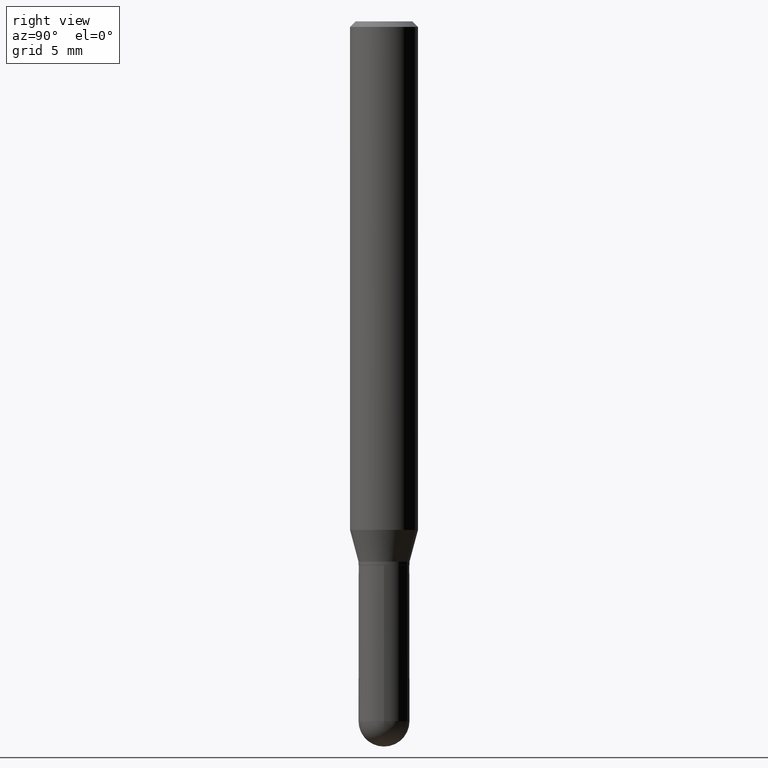
[diagram: clean part render]
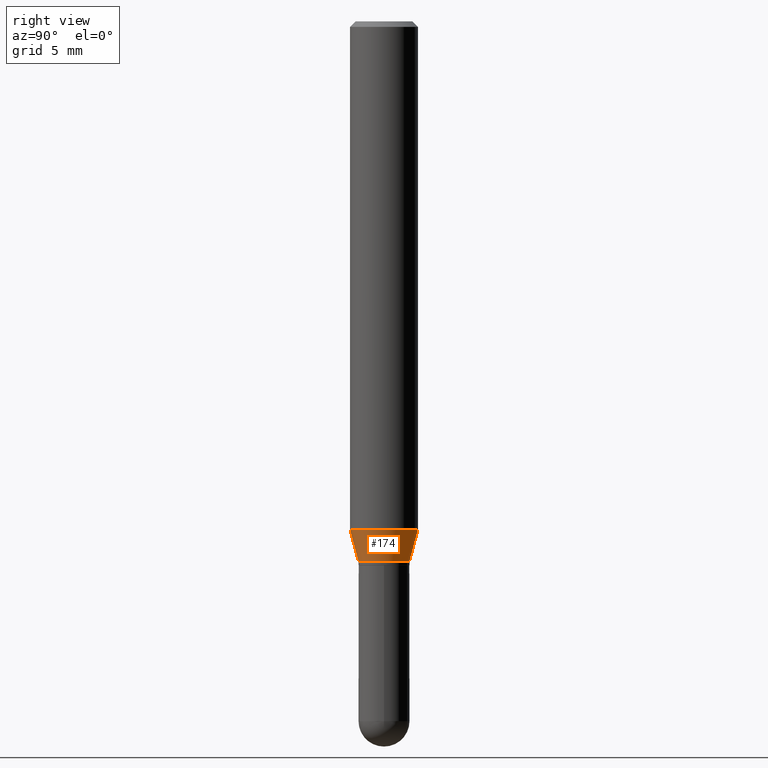
[diagram: same view with one face highlighted and labeled with its STEP entity id]
A machine part, right view. The second image highlights one B-rep face of the part: STEP entity #174.
In plain terms, the highlighted conical surface has half-angle 15 deg.
Its self-contained STEP definition (entity closure, byte-faithful):
#17 = VERTEX_POINT ( 'NONE', #65 ) ;
#55 = CONICAL_SURFACE ( 'NONE', #169, 0.07029999999999970994, 0.2617993877991510732 ) ;
#60 = CARTESIAN_POINT ( 'NONE',  ( -6.546527510330530901E-16, -0.09375000000000488498, -1.402483408562508638 ) ) ;
#65 = CARTESIAN_POINT ( 'NONE',  ( 5.828226790072563992E-16, 0.07029999999999450577, -1.489999999999999991 ) ) ;
#81 = DIRECTION ( 'NONE',  ( -2.445268528450320675E-29, 3.491768147958502797E-15, 1.000000000000000000 ) ) ;
#83 = VERTEX_POINT ( 'NONE', #374 ) ;
#137 = VECTOR ( 'NONE', #386, 39.37007874015748143 ) ;
#156 = DIRECTION ( 'NONE',  ( -6.982962677686265922E-15, -1.000000000000000000, 3.885985766236521163E-15 ) ) ;
#165 = VERTEX_POINT ( 'NONE', #327 ) ;
#169 = AXIS2_PLACEMENT_3D ( 'NONE', #332, #511, #431 ) ;
#174 = ADVANCED_FACE ( 'NONE', ( #357 ), #55, .T. ) ;
#182 = EDGE_CURVE ( 'NONE', #229, #165, #359, .T. ) ;
#204 = ORIENTED_EDGE ( 'NONE', *, *, #462, .F. ) ;
#229 = VERTEX_POINT ( 'NONE', #60 ) ;
#235 = CIRCLE ( 'NONE', #268, 0.07029999999999970994 ) ;
#265 = LINE ( 'NONE', #506, #312 ) ;
#266 = EDGE_LOOP ( 'NONE', ( #300, #308, #397, #204 ) ) ;
#268 = AXIS2_PLACEMENT_3D ( 'NONE', #354, #433, #156 ) ;
#274 = CARTESIAN_POINT ( 'NONE',  ( 4.995115432393847559E-16, 0.07029999999999450577, -1.489999999999999991 ) ) ;
#285 = DIRECTION ( 'NONE',  ( -6.982962677686265922E-15, -1.000000000000000000, 2.913971193241880372E-15 ) ) ;
#297 = AXIS2_PLACEMENT_3D ( 'NONE', #325, #81, #285 ) ;
#300 = ORIENTED_EDGE ( 'NONE', *, *, #508, .T. ) ;
#308 = ORIENTED_EDGE ( 'NONE', *, *, #470, .T. ) ;
#312 = VECTOR ( 'NONE', #321, 39.37007874015748854 ) ;
#321 = DIRECTION ( 'NONE',  ( -1.807323732225335661E-15, -0.2588190451025189631, 0.9659258262890687563 ) ) ;
#325 = CARTESIAN_POINT ( 'NONE',  ( 3.429448540631636149E-29, -4.897146894058840106E-15, -1.402483408562508860 ) ) ;
#327 = CARTESIAN_POINT ( 'NONE',  ( 6.661338147751283383E-16, 0.09374999999999512890, -1.402483408562509304 ) ) ;
#332 = CARTESIAN_POINT ( 'NONE',  ( 3.643450107390976951E-29, -5.202734540458167266E-15, -1.489999999999999769 ) ) ;
#354 = CARTESIAN_POINT ( 'NONE',  ( 3.643450107390976951E-29, -5.202734540458167266E-15, -1.489999999999999769 ) ) ;
#357 = FACE_OUTER_BOUND ( 'NONE', #266, .T. ) ;
#359 = CIRCLE ( 'NONE', #297, 0.09375000000000001388 ) ;
#374 = CARTESIAN_POINT ( 'NONE',  ( -4.909022762413059973E-16, -0.07030000000000491411, -1.489999999999999325 ) ) ;
#386 = DIRECTION ( 'NONE',  ( 1.839019923739605837E-15, 0.2588190451025257355, 0.9659258262890669799 ) ) ;
#397 = ORIENTED_EDGE ( 'NONE', *, *, #182, .F. ) ;
#431 = DIRECTION ( 'NONE',  ( -6.982962677686265922E-15, -1.000000000000000000, 3.885985766236521163E-15 ) ) ;
#433 = DIRECTION ( 'NONE',  ( -2.445268528450320675E-29, 3.491768147958502797E-15, 1.000000000000000000 ) ) ;
#462 = EDGE_CURVE ( 'NONE', #83, #229, #265, .T. ) ;
#466 = LINE ( 'NONE', #274, #137 ) ;
#470 = EDGE_CURVE ( 'NONE', #17, #165, #466, .T. ) ;
#506 = CARTESIAN_POINT ( 'NONE',  ( -4.909022762413059973E-16, -0.07030000000000491411, -1.489999999999999325 ) ) ;
#508 = EDGE_CURVE ( 'NONE', #83, #17, #235, .T. ) ;
#511 = DIRECTION ( 'NONE',  ( -2.445268528450320675E-29, 3.491768147958502797E-15, 1.000000000000000000 ) ) ;